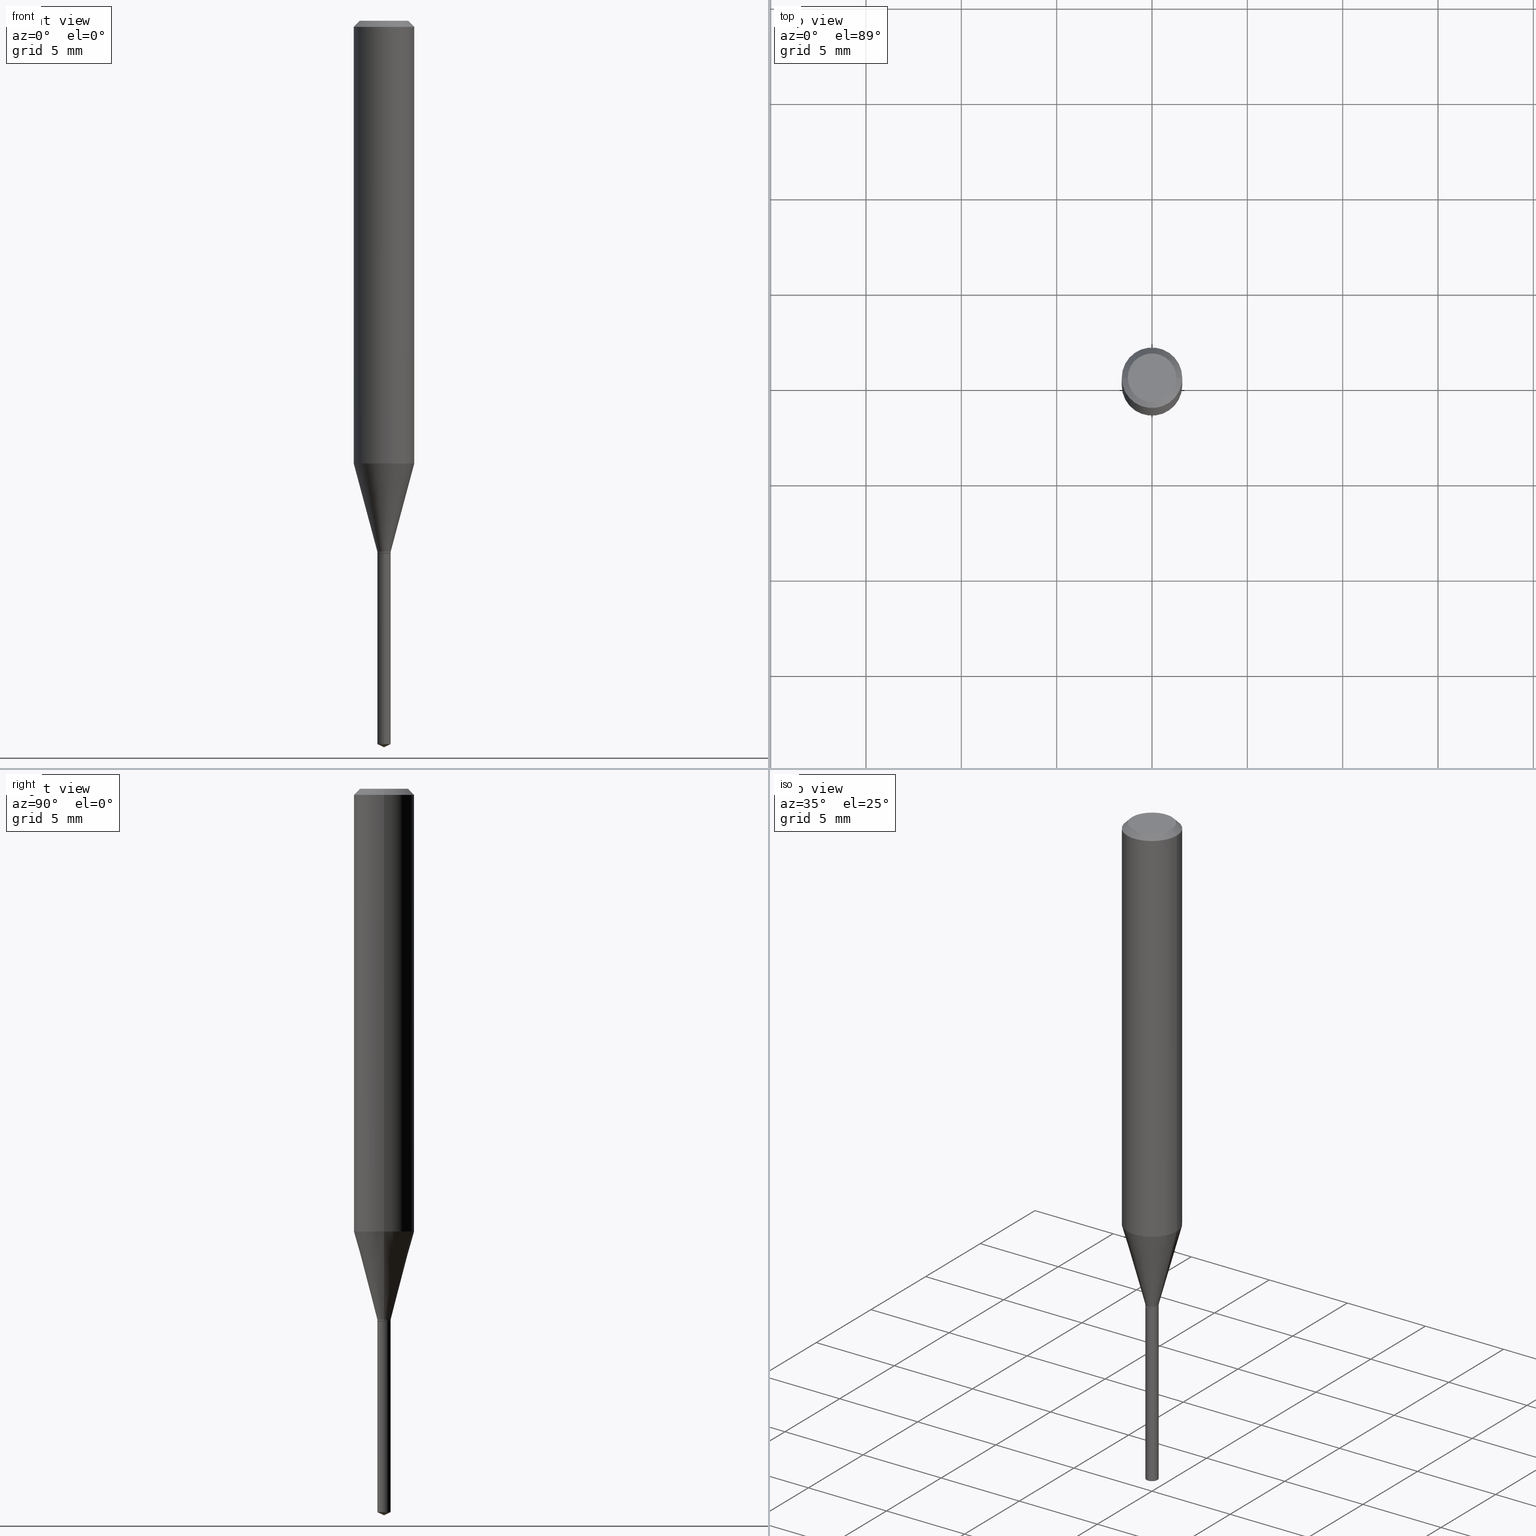
[diagram: canonical four-view strip — front | top / right | iso, engineering-drawing reading convention]
A machine part, canonical four-view strip (front | top / right | iso — engineering-drawing reading convention). The complete STEP part file that produces these views, byte-faithful:
ISO-10303-21;
HEADER;
FILE_DESCRIPTION (( 'STEP AP203' ),
    '1' );
FILE_NAME ('07291.STEP',
    '2024-04-23T20:14:42',
    ( '' ),
    ( '' ),
    'SwSTEP 2.0',
    'SolidWorks 2023',
    '' );
FILE_SCHEMA (( 'CONFIG_CONTROL_DESIGN' ));
ENDSEC;

DATA;
#1 = LINE ( 'NONE', #5, #126 ) ;
#2 = EDGE_LOOP ( 'NONE', ( #470, #480, #7, #56 ) ) ;
#3 = CYLINDRICAL_SURFACE ( 'NONE', #347, 0.01379999999999999977 ) ;
#4 = APPLICATION_PROTOCOL_DEFINITION ( 'international standard', 'config_control_design', 1994, #412 ) ;
#5 = CARTESIAN_POINT ( 'NONE',  ( -0.01379999999999999977, 9.805489753489382399E-17, -6.788130424551770621E-31 ) ) ;
#6 = DIRECTION ( 'NONE',  ( -2.445468806185136597E-29, 3.491481338843145583E-15, 1.000000000000000000 ) ) ;
#7 = ORIENTED_EDGE ( 'NONE', *, *, #40, .F. ) ;
#8 = LINE ( 'NONE', #388, #26 ) ;
#9 = LOCAL_TIME ( 16, 14, 42.00000000000000000, #475 ) ;
#10 = AXIS2_PLACEMENT_3D ( 'NONE', #211, #186, #432 ) ;
#11 = APPROVAL_DATE_TIME ( #324, #396 ) ;
#12 = CONICAL_SURFACE ( 'NONE', #213, 0.01379999999999999977, 0.2617993877991499074 ) ;
#13 = CC_DESIGN_SECURITY_CLASSIFICATION ( #390, ( #374 ) ) ;
#14 = ORIENTED_EDGE ( 'NONE', *, *, #344, .T. ) ;
#15 = CARTESIAN_POINT ( 'NONE',  ( 2.690015686803650369E-29, -3.840629472727460101E-15, -1.100000000000000089 ) ) ;
#16 = DIRECTION ( 'NONE',  ( -2.445399690415121530E-29, 3.491580316559632610E-15, 1.000000000000000000 ) ) ;
#17 = VECTOR ( 'NONE', #166, 39.37007874015748143 ) ;
#18 = CC_DESIGN_APPROVAL ( #396, ( #374 ) ) ;
#19 = CARTESIAN_POINT ( 'NONE',  ( 1.946643104841063088E-47, -2.779290439833033990E-33, -7.960204194457798443E-19 ) ) ;
#20 = PERSON_AND_ORGANIZATION ( #250, #51 ) ;
#21 = CARTESIAN_POINT ( 'NONE',  ( 0.06250000000000000000, -4.724246415962602840E-16, -0.01250000000000008223 ) ) ;
#22 = ORIENTED_EDGE ( 'NONE', *, *, #365, .F. ) ;
#23 = DIRECTION ( 'NONE',  ( -2.445468806185136597E-29, 3.491481338843145583E-15, 1.000000000000000000 ) ) ;
#24 = ADVANCED_FACE ( 'NONE', ( #104 ), #227, .T. ) ;
#25 = ORIENTED_EDGE ( 'NONE', *, *, #279, .T. ) ;
#26 = VECTOR ( 'NONE', #474, 39.37007874015748854 ) ;
#27 = LINE ( 'NONE', #185, #263 ) ;
#28 = CONICAL_SURFACE ( 'NONE', #484, 84.42940631927420725, 1.134464013796315340 ) ;
#29 = DIRECTION ( 'NONE',  ( 1.000000000000000000, -6.982962677686266711E-15, 0.000000000000000000 ) ) ;
#30 = VERTEX_POINT ( 'NONE', #400 ) ;
#31 = VERTEX_POINT ( 'NONE', #334 ) ;
#32 = DIRECTION ( 'NONE',  ( 0.2588190451025211836, 1.565188264969622559E-15, 0.9659258262890679791 ) ) ;
#33 = EDGE_CURVE ( 'NONE', #323, #309, #264, .T. ) ;
#34 = EDGE_LOOP ( 'NONE', ( #158, #25, #98, #189 ) ) ;
#35 = CIRCLE ( 'NONE', #430, 0.06250000000000000000 ) ;
#36 = CARTESIAN_POINT ( 'NONE',  ( -0.06250000000000005551, 4.440892098500630106E-16, -3.074334431409318916E-30 ) ) ;
#37 = ORIENTED_EDGE ( 'NONE', *, *, #33, .F. ) ;
#38 = DIRECTION ( 'NONE',  ( -2.445468806185136597E-29, 3.491481338843145583E-15, 1.000000000000000000 ) ) ;
#39 = DIRECTION ( 'NONE',  ( 1.000000000000000000, -6.982962677686269866E-15, 0.000000000000000000 ) ) ;
#40 = EDGE_CURVE ( 'NONE', #487, #221, #107, .T. ) ;
#41 = DIRECTION ( 'NONE',  ( -2.438088387897960049E-29, 3.491481338843145188E-15, 1.000000000000000000 ) ) ;
#42 = ORIENTED_EDGE ( 'NONE', *, *, #485, .T. ) ;
#43 = DIRECTION ( 'NONE',  ( -2.445468806185136877E-29, 3.491481338843145188E-15, 1.000000000000000000 ) ) ;
#44 = AXIS2_PLACEMENT_3D ( 'NONE', #232, #192, #269 ) ;
#45 = FACE_OUTER_BOUND ( 'NONE', #63, .T. ) ;
#46 = PRODUCT_DEFINITION ( 'UNKNOWN', '', #374, #318 ) ;
#47 = ORIENTED_EDGE ( 'NONE', *, *, #33, .T. ) ;
#48 = VECTOR ( 'NONE', #483, 39.37007874015748143 ) ;
#49 = CALENDAR_DATE ( 2024, 23, 4 ) ;
#50 = CIRCLE ( 'NONE', #190, 0.01379999999999999977 ) ;
#51 = ORGANIZATION ( 'UNSPECIFIED', 'UNSPECIFIED', '' ) ;
#52 = EDGE_LOOP ( 'NONE', ( #119, #144 ) ) ;
#53 = DIRECTION ( 'NONE',  ( 1.000000000000000000, -6.982962677686269866E-15, 0.000000000000000000 ) ) ;
#54 = PERSON_AND_ORGANIZATION ( #250, #51 ) ;
#55 = ORIENTED_EDGE ( 'NONE', *, *, #75, .T. ) ;
#56 = ORIENTED_EDGE ( 'NONE', *, *, #219, .F. ) ;
#57 = VERTEX_POINT ( 'NONE', #175 ) ;
#58 = EDGE_CURVE ( 'NONE', #387, #149, #401, .T. ) ;
#59 = CYLINDRICAL_SURFACE ( 'NONE', #88, 0.01379999999999999977 ) ;
#60 = VERTEX_POINT ( 'NONE', #359 ) ;
#61 = DIRECTION ( 'NONE',  ( -0.7071067811865453523, 2.468850131082234184E-15, -0.7071067811865496822 ) ) ;
#62 = ADVANCED_FACE ( 'NONE', ( #398 ), #12, .T. ) ;
#63 = EDGE_LOOP ( 'NONE', ( #392, #42, #258, #335 ) ) ;
#64 = DIRECTION ( 'NONE',  ( -2.445468806185136597E-29, 3.491481338843145583E-15, 1.000000000000000000 ) ) ;
#65 = ORIENTED_EDGE ( 'NONE', *, *, #233, .T. ) ;
#66 = FACE_OUTER_BOUND ( 'NONE', #150, .T. ) ;
#67 = AXIS2_PLACEMENT_3D ( 'NONE', #260, #406, #29 ) ;
#68 = ORIENTED_EDGE ( 'NONE', *, *, #444, .T. ) ;
#69 = DIRECTION ( 'NONE',  ( 1.000000000000000000, -6.982962677686265922E-15, 4.875957971899673662E-29 ) ) ;
#70 = ORIENTED_EDGE ( 'NONE', *, *, #75, .F. ) ;
#71 = DIRECTION ( 'NONE',  ( 1.000000000000000000, 0.000000000000000000, 0.000000000000000000 ) ) ;
#72 = AXIS2_PLACEMENT_3D ( 'NONE', #248, #16, #261 ) ;
#73 =( GEOMETRIC_REPRESENTATION_CONTEXT ( 3 ) GLOBAL_UNCERTAINTY_ASSIGNED_CONTEXT ( ( #411 ) ) GLOBAL_UNIT_ASSIGNED_CONTEXT ( ( #230, #151, #268 ) ) REPRESENTATION_CONTEXT ( 'NONE', 'WORKASPACE' ) );
#74 = LINE ( 'NONE', #424, #118 ) ;
#75 = EDGE_CURVE ( 'NONE', #476, #116, #234, .T. ) ;
#76 = DIRECTION ( 'NONE',  ( 1.000000000000000000, -6.982962677686265922E-15, 0.000000000000000000 ) ) ;
#77 = ORIENTED_EDGE ( 'NONE', *, *, #122, .F. ) ;
#78 = PRODUCT ( '07291', '07291', '', ( #462 ) ) ;
#79 = DIRECTION ( 'NONE',  ( -2.445468806185136877E-29, 3.491481338843145188E-15, 1.000000000000000000 ) ) ;
#80 = CARTESIAN_POINT ( 'NONE',  ( 3.056836007731440977E-31, -4.364351673553961068E-17, -0.01250000000000008223 ) ) ;
#81 = AXIS2_PLACEMENT_3D ( 'NONE', #435, #170, #95 ) ;
#82 = ORIENTED_EDGE ( 'NONE', *, *, #122, .T. ) ;
#83 = ADVANCED_FACE ( 'NONE', ( #467 ), #155, .T. ) ;
#84 = CARTESIAN_POINT ( 'NONE',  ( 0.01379999999999999977, -9.636488495207048524E-17, 6.729123950598392144E-31 ) ) ;
#85 = CARTESIAN_POINT ( 'NONE',  ( 9.805489753492071922E-17, 0.01379999999999615909, -1.100000000000000089 ) ) ;
#86 = DIRECTION ( 'NONE',  ( -2.445399690415121530E-29, 3.491580316559632610E-15, 1.000000000000000000 ) ) ;
#87 = ADVANCED_FACE ( 'NONE', ( #195 ), #376, .T. ) ;
#88 = AXIS2_PLACEMENT_3D ( 'NONE', #204, #358, #212 ) ;
#89 = ORIENTED_EDGE ( 'NONE', *, *, #327, .F. ) ;
#90 = CARTESIAN_POINT ( 'NONE',  ( 0.06250000000000005551, -4.364351673553921131E-16, 3.047610484872463023E-30 ) ) ;
#91 = DIRECTION ( 'NONE',  ( 1.000000000000000000, -6.982962677686265922E-15, 4.875957971899673662E-29 ) ) ;
#92 = FACE_OUTER_BOUND ( 'NONE', #196, .T. ) ;
#93 = ORIENTED_EDGE ( 'NONE', *, *, #249, .T. ) ;
#94 = ORIENTED_EDGE ( 'NONE', *, *, #123, .F. ) ;
#95 = DIRECTION ( 'NONE',  ( 1.000000000000000000, -6.982962677686269866E-15, 0.000000000000000000 ) ) ;
#96 = DATE_AND_TIME ( #436, #161 ) ;
#97 = AXIS2_PLACEMENT_3D ( 'NONE', #326, #38, #310 ) ;
#98 = ORIENTED_EDGE ( 'NONE', *, *, #444, .F. ) ;
#99 = FACE_OUTER_BOUND ( 'NONE', #422, .T. ) ;
#100 = DIRECTION ( 'NONE',  ( -2.445399690415121530E-29, 3.491580316559632610E-15, 1.000000000000000000 ) ) ;
#101 = CARTESIAN_POINT ( 'NONE',  ( -9.260740279983036507E-28, 1.322265303911854087E-13, 37.87007874015748143 ) ) ;
#102 = CIRCLE ( 'NONE', #450, 0.01379999999999999977 ) ;
#103 = DIRECTION ( 'NONE',  ( 1.000000000000000000, -6.982962677686264344E-15, 0.000000000000000000 ) ) ;
#104 = FACE_OUTER_BOUND ( 'NONE', #142, .T. ) ;
#105 = EDGE_LOOP ( 'NONE', ( #55, #128, #22, #256 ) ) ;
#106 = CARTESIAN_POINT ( 'NONE',  ( 2.690015686803650369E-29, -3.840629472727460101E-15, -1.100000000000000089 ) ) ;
#107 = CIRCLE ( 'NONE', #72, 0.01379999999999999977 ) ;
#108 = PERSON_AND_ORGANIZATION_ROLE ( 'design_owner' ) ;
#109 = AXIS2_PLACEMENT_3D ( 'NONE', #267, #159, #311 ) ;
#110 = ADVANCED_FACE ( 'NONE', ( #153 ), #228, .T. ) ;
#111 = LOCAL_TIME ( 16, 14, 42.00000000000000000, #272 ) ;
#112 = CARTESIAN_POINT ( 'NONE',  ( -9.636488495204356536E-17, -0.01380000000000384218, -1.100000000000000089 ) ) ;
#113 = CARTESIAN_POINT ( 'NONE',  ( 3.056836007731440977E-31, -4.364351673553961068E-17, -0.01250000000000008223 ) ) ;
#114 = ORIENTED_EDGE ( 'NONE', *, *, #327, .T. ) ;
#115 = CARTESIAN_POINT ( 'NONE',  ( 0.000000000000000000, 0.000000000000000000, 0.000000000000000000 ) ) ;
#116 = VERTEX_POINT ( 'NONE', #341 ) ;
#117 = DIRECTION ( 'NONE',  ( 1.000000000000000000, -6.982962677686267499E-15, 4.876176775795936353E-29 ) ) ;
#118 = VECTOR ( 'NONE', #307, 39.37007874015748854 ) ;
#119 = ORIENTED_EDGE ( 'NONE', *, *, #40, .T. ) ;
#120 = FACE_OUTER_BOUND ( 'NONE', #225, .T. ) ;
#121 = APPROVAL_DATE_TIME ( #280, #274 ) ;
#122 = EDGE_CURVE ( 'NONE', #31, #60, #35, .T. ) ;
#123 = EDGE_CURVE ( 'NONE', #387, #60, #156, .T. ) ;
#124 = LINE ( 'NONE', #85, #408 ) ;
#125 = APPROVAL_ROLE ( '' ) ;
#126 = VECTOR ( 'NONE', #157, 39.37007874015748143 ) ;
#127 = CC_DESIGN_PERSON_AND_ORGANIZATION_ASSIGNMENT ( #134, #130, ( #390 ) ) ;
#128 = ORIENTED_EDGE ( 'NONE', *, *, #177, .T. ) ;
#129 = DIRECTION ( 'NONE',  ( -6.982962677686265922E-15, -1.000000000000000000, 0.000000000000000000 ) ) ;
#130 = PERSON_AND_ORGANIZATION_ROLE ( 'classification_officer' ) ;
#131 = PERSON_AND_ORGANIZATION ( #250, #51 ) ;
#132 = CARTESIAN_POINT ( 'NONE',  ( 2.679989264698291414E-29, -3.826314399238203772E-15, -1.095900000000000096 ) ) ;
#133 = DIRECTION ( 'NONE',  ( 2.438088387897960049E-29, -3.491481338843145188E-15, -1.000000000000000000 ) ) ;
#134 = PERSON_AND_ORGANIZATION ( #250, #51 ) ;
#135 = CC_DESIGN_PERSON_AND_ORGANIZATION_ASSIGNMENT ( #302, #108, ( #78 ) ) ;
#136 = CIRCLE ( 'NONE', #482, 0.01330000000000000279 ) ;
#137 = VECTOR ( 'NONE', #43, 39.37007874015748143 ) ;
#138 = DIRECTION ( 'NONE',  ( -2.445399690415121530E-29, 3.491580316559632610E-15, 1.000000000000000000 ) ) ;
#139 = EDGE_CURVE ( 'NONE', #476, #57, #273, .T. ) ;
#140 = VERTEX_POINT ( 'NONE', #490 ) ;
#141 = CARTESIAN_POINT ( 'NONE',  ( 2.235523171030814691E-29, -3.191734613201455764E-15, -0.9141491256713957236 ) ) ;
#142 = EDGE_LOOP ( 'NONE', ( #420, #93, #417 ) ) ;
#143 = DIRECTION ( 'NONE',  ( 6.982962677686265922E-15, 1.000000000000000000, -3.491580316559632610E-15 ) ) ;
#144 = ORIENTED_EDGE ( 'NONE', *, *, #242, .T. ) ;
#145 = EDGE_CURVE ( 'NONE', #251, #30, #102, .T. ) ;
#146 = VECTOR ( 'NONE', #418, 39.37007874015748143 ) ;
#147 = ORIENTED_EDGE ( 'NONE', *, *, #207, .F. ) ;
#148 = CARTESIAN_POINT ( 'NONE',  ( 3.893286209682126177E-47, -5.558580879666067980E-33, -1.592040838891559689E-18 ) ) ;
#149 = VERTEX_POINT ( 'NONE', #346 ) ;
#150 = EDGE_LOOP ( 'NONE', ( #373, #300, #147, #187 ) ) ;
#151 =( NAMED_UNIT ( * ) PLANE_ANGLE_UNIT ( ) SI_UNIT ( $, .RADIAN. ) );
#152 = FACE_OUTER_BOUND ( 'NONE', #306, .T. ) ;
#153 = FACE_OUTER_BOUND ( 'NONE', #371, .T. ) ;
#154 = ORIENTED_EDGE ( 'NONE', *, *, #428, .F. ) ;
#155 = CONICAL_SURFACE ( 'NONE', #44, 0.01330000000000000279, 0.7853981633974098653 ) ;
#156 = LINE ( 'NONE', #36, #137 ) ;
#157 = DIRECTION ( 'NONE',  ( -2.445468806185136877E-29, 3.491481338843145188E-15, 1.000000000000000000 ) ) ;
#158 = ORIENTED_EDGE ( 'NONE', *, *, #207, .T. ) ;
#159 = DIRECTION ( 'NONE',  ( 2.445468806185136597E-29, -3.491481338843145583E-15, -1.000000000000000000 ) ) ;
#160 = PRODUCT_RELATED_PRODUCT_CATEGORY ( 'detail', '', ( #78 ) ) ;
#161 = LOCAL_TIME ( 16, 14, 42.00000000000000000, #287 ) ;
#162 = LINE ( 'NONE', #356, #17 ) ;
#163 = AXIS2_PLACEMENT_3D ( 'NONE', #80, #421, #301 ) ;
#164 = CONICAL_SURFACE ( 'NONE', #214, 0.01330000000000000279, 0.7853981633974098653 ) ;
#165 = DATE_AND_TIME ( #49, #353 ) ;
#166 = DIRECTION ( 'NONE',  ( -6.328713451373372534E-15, -0.9063077870366488265, 0.4226182617407016062 ) ) ;
#167 = ADVANCED_FACE ( 'NONE', ( #152 ), #191, .F. ) ;
#168 = ORIENTED_EDGE ( 'NONE', *, *, #249, .F. ) ;
#169 = CC_DESIGN_DATE_AND_TIME_ASSIGNMENT ( #165, #176, ( #46 ) ) ;
#170 = DIRECTION ( 'NONE',  ( -2.445468806185136597E-29, 3.491481338843145583E-15, 1.000000000000000000 ) ) ;
#171 = ORIENTED_EDGE ( 'NONE', *, *, #139, .T. ) ;
#172 = DIRECTION ( 'NONE',  ( -2.445468806185136597E-29, 3.491481338843145583E-15, 1.000000000000000000 ) ) ;
#173 = CLOSED_SHELL ( 'NONE', ( #83, #87, #218, #62, #465, #181, #224, #342, #110, #239, #167, #381 ) ) ;
#174 = PERSON_AND_ORGANIZATION_ROLE ( 'creator' ) ;
#175 = CARTESIAN_POINT ( 'NONE',  ( 0.01379999999999999977, -3.935248617010108750E-15, -1.099499999999999922 ) ) ;
#176 = DATE_TIME_ROLE ( 'creation_date' ) ;
#177 = EDGE_CURVE ( 'NONE', #116, #247, #74, .T. ) ;
#178 = CARTESIAN_POINT ( 'NONE',  ( 2.690015686803650369E-29, -3.840629472727460101E-15, -1.100000000000000089 ) ) ;
#179 = CARTESIAN_POINT ( 'NONE',  ( 2.690015686803650369E-29, -3.840629472727460101E-15, -1.100000000000000089 ) ) ;
#180 = AXIS2_PLACEMENT_3D ( 'NONE', #361, #86, #321 ) ;
#181 = ADVANCED_FACE ( 'NONE', ( #461 ), #3, .T. ) ;
#182 = AXIS2_PLACEMENT_3D ( 'NONE', #402, #448, #257 ) ;
#183 = EDGE_CURVE ( 'NONE', #57, #140, #193, .T. ) ;
#184 = CARTESIAN_POINT ( 'NONE',  ( 0.01379999999999999977, -3.922679284190274713E-15, -1.095900000000000096 ) ) ;
#185 = CARTESIAN_POINT ( 'NONE',  ( -0.06250000000000000000, 3.927916506198521080E-16, -0.01250000000000008223 ) ) ;
#186 = DIRECTION ( 'NONE',  ( -2.445399690415121530E-29, 3.491580316559632610E-15, 1.000000000000000000 ) ) ;
#187 = ORIENTED_EDGE ( 'NONE', *, *, #183, .F. ) ;
#188 = DIRECTION ( 'NONE',  ( -2.445468806185136597E-29, 3.491481338843145583E-15, 1.000000000000000000 ) ) ;
#189 = ORIENTED_EDGE ( 'NONE', *, *, #362, .F. ) ;
#190 = AXIS2_PLACEMENT_3D ( 'NONE', #349, #380, #39 ) ;
#191 = PLANE ( 'NONE',  #202 ) ;
#192 = DIRECTION ( 'NONE',  ( -2.445468806185136597E-29, 3.491481338843145583E-15, 1.000000000000000000 ) ) ;
#193 = LINE ( 'NONE', #84, #440 ) ;
#194 = VECTOR ( 'NONE', #32, 39.37007874015748854 ) ;
#195 = FACE_OUTER_BOUND ( 'NONE', #454, .T. ) ;
#196 = EDGE_LOOP ( 'NONE', ( #94, #199, #114, #292 ) ) ;
#197 = CARTESIAN_POINT ( 'NONE',  ( 2.690015686803650369E-29, -3.840629472727460101E-15, -1.100000000000000089 ) ) ;
#198 = CALENDAR_DATE ( 2024, 23, 4 ) ;
#199 = ORIENTED_EDGE ( 'NONE', *, *, #58, .T. ) ;
#200 = AXIS2_PLACEMENT_3D ( 'NONE', #348, #384, #71 ) ;
#201 = DIRECTION ( 'NONE',  ( -1.000000000000000000, 6.982962677686265922E-15, -4.876176775795935793E-29 ) ) ;
#202 = AXIS2_PLACEMENT_3D ( 'NONE', #106, #41, #415 ) ;
#203 = CIRCLE ( 'NONE', #339, 0.01379999999999999977 ) ;
#204 = CARTESIAN_POINT ( 'NONE',  ( 2.690015686803650369E-29, -3.840629472727460101E-15, -1.100000000000000089 ) ) ;
#205 = ADVANCED_BREP_SHAPE_REPRESENTATION ( '07291', ( #449, #282, #200 ), #73 ) ;
#206 = COORDINATED_UNIVERSAL_TIME_OFFSET ( 5, 0, .BEHIND. ) ;
#207 = EDGE_CURVE ( 'NONE', #140, #410, #50, .T. ) ;
#208 = PERSON_AND_ORGANIZATION ( #250, #51 ) ;
#209 = PRODUCT_DEFINITION_SHAPE ( 'NONE', 'NONE',  #46 ) ;
#210 = EDGE_CURVE ( 'NONE', #247, #410, #1, .T. ) ;
#211 = CARTESIAN_POINT ( 'NONE',  ( -9.260740279983036507E-28, 1.322265303911854087E-13, 37.87007874015748143 ) ) ;
#212 = DIRECTION ( 'NONE',  ( -6.982962677686265922E-15, -1.000000000000000000, 0.000000000000000000 ) ) ;
#213 = AXIS2_PLACEMENT_3D ( 'NONE', #132, #350, #231 ) ;
#214 = AXIS2_PLACEMENT_3D ( 'NONE', #179, #445, #298 ) ;
#215 = CARTESIAN_POINT ( 'NONE',  ( -0.01379999999999999977, -3.734544168113227903E-15, -1.095900000000000096 ) ) ;
#216 = DIRECTION ( 'NONE',  ( 1.000000000000000000, -6.982962677686265922E-15, 0.000000000000000000 ) ) ;
#217 = CYLINDRICAL_SURFACE ( 'NONE', #182, 0.01379999999999999977 ) ;
#218 = ADVANCED_FACE ( 'NONE', ( #463 ), #303, .T. ) ;
#219 = EDGE_CURVE ( 'NONE', #30, #487, #236, .T. ) ;
#220 = FACE_OUTER_BOUND ( 'NONE', #52, .T. ) ;
#221 = VERTEX_POINT ( 'NONE', #386 ) ;
#222 = DIRECTION ( 'NONE',  ( 2.445399690415121250E-29, -3.491580316559632610E-15, -1.000000000000000000 ) ) ;
#223 = DIMENSIONAL_EXPONENTS ( 1.000000000000000000, 0.000000000000000000, 0.000000000000000000, 0.000000000000000000, 0.000000000000000000, 0.000000000000000000, 0.000000000000000000 ) ;
#224 = ADVANCED_FACE ( 'NONE', ( #45 ), #391, .T. ) ;
#225 = EDGE_LOOP ( 'NONE', ( #294, #237, #425, #308 ) ) ;
#226 = CIRCLE ( 'NONE', #97, 0.01379999999999999977 ) ;
#227 = CONICAL_SURFACE ( 'NONE', #10, 84.42940631927420725, 1.134464013796315340 ) ;
#228 = CONICAL_SURFACE ( 'NONE', #109, 0.06250000000000000000, 0.7853981633974452814 ) ;
#229 = CARTESIAN_POINT ( 'NONE',  ( 0.000000000000000000, 0.000000000000000000, 0.000000000000000000 ) ) ;
#230 =( CONVERSION_BASED_UNIT ( 'INCH', #489 ) LENGTH_UNIT ( ) NAMED_UNIT ( #223 ) );
#231 = DIRECTION ( 'NONE',  ( 1.000000000000000000, -6.982962677686269866E-15, 0.000000000000000000 ) ) ;
#232 = CARTESIAN_POINT ( 'NONE',  ( 2.690015686803650369E-29, -3.840629472727460101E-15, -1.100000000000000089 ) ) ;
#233 = EDGE_CURVE ( 'NONE', #247, #57, #477, .T. ) ;
#234 = CIRCLE ( 'NONE', #354, 0.01330000000000000279 ) ;
#235 = AXIS2_PLACEMENT_3D ( 'NONE', #15, #319, #129 ) ;
#236 = LINE ( 'NONE', #112, #146 ) ;
#237 = ORIENTED_EDGE ( 'NONE', *, *, #145, .T. ) ;
#238 = APPLICATION_PROTOCOL_DEFINITION ( 'international standard', 'config_control_design', 1994, #457 ) ;
#239 = ADVANCED_FACE ( 'NONE', ( #426 ), #351, .F. ) ;
#240 = CARTESIAN_POINT ( 'NONE',  ( 3.652439304249811450E-29, -5.214793120509997697E-15, -1.493564954317461169 ) ) ;
#241 = VERTEX_POINT ( 'NONE', #389 ) ;
#242 = EDGE_CURVE ( 'NONE', #221, #487, #468, .T. ) ;
#243 = SHAPE_DEFINITION_REPRESENTATION ( #209, #205 ) ;
#244 = ORIENTED_EDGE ( 'NONE', *, *, #364, .T. ) ;
#245 = LINE ( 'NONE', #478, #460 ) ;
#246 = APPROVAL_DATE_TIME ( #429, #366 ) ;
#247 = VERTEX_POINT ( 'NONE', #473 ) ;
#248 = CARTESIAN_POINT ( 'NONE',  ( 2.690015686803650369E-29, -3.840629472727460101E-15, -1.100000000000000089 ) ) ;
#249 = EDGE_CURVE ( 'NONE', #241, #251, #245, .T. ) ;
#250 = PERSON ( 'UNSPECIFIED', 'UNSPECIFIED', 'UNSPECIFIED', ('UNSPECIFIED'), ('UNSPECIFIED'), ('UNSPECIFIED') ) ;
#251 = VERTEX_POINT ( 'NONE', #286 ) ;
#252 = CLOSED_SHELL ( 'NONE', ( #254, #24, #464, #297, #471 ) ) ;
#253 = COORDINATED_UNIVERSAL_TIME_OFFSET ( 5, 0, .BEHIND. ) ;
#254 = ADVANCED_FACE ( 'NONE', ( #394 ), #59, .T. ) ;
#255 = CC_DESIGN_PERSON_AND_ORGANIZATION_ASSIGNMENT ( #20, #479, ( #46 ) ) ;
#256 = ORIENTED_EDGE ( 'NONE', *, *, #139, .F. ) ;
#257 = DIRECTION ( 'NONE',  ( 1.000000000000000000, -6.982962677686267499E-15, 4.876176775795936353E-29 ) ) ;
#258 = ORIENTED_EDGE ( 'NONE', *, *, #362, .T. ) ;
#259 = CIRCLE ( 'NONE', #360, 0.04999999999999999584 ) ;
#260 = CARTESIAN_POINT ( 'NONE',  ( 3.056836007731440977E-31, -4.364351673553961068E-17, -0.01250000000000008223 ) ) ;
#261 = DIRECTION ( 'NONE',  ( -6.982962677686265922E-15, -1.000000000000000000, 0.000000000000000000 ) ) ;
#262 = CARTESIAN_POINT ( 'NONE',  ( 0.01330000000000000279, -3.933502876340687247E-15, -1.100000000000000089 ) ) ;
#263 = VECTOR ( 'NONE', #61, 39.37007874015748143 ) ;
#264 = CIRCLE ( 'NONE', #330, 0.04999999999999999584 ) ;
#265 = AXIS2_PLACEMENT_3D ( 'NONE', #19, #133, #201 ) ;
#266 = CIRCLE ( 'NONE', #355, 0.01379999999999999977 ) ;
#267 = CARTESIAN_POINT ( 'NONE',  ( 3.056836007731440977E-31, -4.364351673553961068E-17, -0.01250000000000008223 ) ) ;
#268 =( NAMED_UNIT ( * ) SI_UNIT ( $, .STERADIAN. ) SOLID_ANGLE_UNIT ( ) );
#269 = DIRECTION ( 'NONE',  ( 1.000000000000000000, -6.982962677686265922E-15, 0.000000000000000000 ) ) ;
#270 = ORIENTED_EDGE ( 'NONE', *, *, #210, .F. ) ;
#271 = DIRECTION ( 'NONE',  ( 1.000000000000000000, -6.982962677686267499E-15, 4.876176775795936353E-29 ) ) ;
#272 = COORDINATED_UNIVERSAL_TIME_OFFSET ( 5, 0, .BEHIND. ) ;
#273 = LINE ( 'NONE', #262, #416 ) ;
#274 = APPROVAL ( #472, 'UNSPECIFIED' ) ;
#275 = DIRECTION ( 'NONE',  ( 6.439704144417027987E-15, 0.9063077870366519351, 0.4226182617406953335 ) ) ;
#276 = APPROVAL_ROLE ( '' ) ;
#277 = CARTESIAN_POINT ( 'NONE',  ( -0.04999999999999999584, 3.709698922520826725E-16, -1.592040838894077649E-18 ) ) ;
#278 = AXIS2_PLACEMENT_3D ( 'NONE', #367, #488, #289 ) ;
#279 = EDGE_CURVE ( 'NONE', #410, #387, #8, .T. ) ;
#280 = DATE_AND_TIME ( #284, #377 ) ;
#281 = ORIENTED_EDGE ( 'NONE', *, *, #364, .F. ) ;
#282 = MANIFOLD_SOLID_BREP ( 'Body-Move/Copy2[2]', #173 ) ;
#283 = CARTESIAN_POINT ( 'NONE',  ( 0.04999999999999999584, -4.077247707424184212E-16, -1.592040838888913461E-18 ) ) ;
#284 = CALENDAR_DATE ( 2024, 23, 4 ) ;
#285 = CARTESIAN_POINT ( 'NONE',  ( 3.893286209682126177E-47, -5.558580879666067980E-33, -1.592040838891559689E-18 ) ) ;
#286 = CARTESIAN_POINT ( 'NONE',  ( 9.805489753493030881E-17, 0.01379999999999478345, -1.493564954317461169 ) ) ;
#287 = COORDINATED_UNIVERSAL_TIME_OFFSET ( 5, 0, .BEHIND. ) ;
#288 = APPROVAL_PERSON_ORGANIZATION ( #208, #274, #125 ) ;
#289 = DIRECTION ( 'NONE',  ( 1.000000000000000000, -6.982962677686267499E-15, 4.876176775795936353E-29 ) ) ;
#290 = EDGE_CURVE ( 'NONE', #241, #30, #162, .T. ) ;
#291 = DIRECTION ( 'NONE',  ( -6.982962677686265922E-15, -1.000000000000000000, 0.000000000000000000 ) ) ;
#292 = ORIENTED_EDGE ( 'NONE', *, *, #344, .F. ) ;
#293 = CARTESIAN_POINT ( 'NONE',  ( 3.652439304249811450E-29, -5.214793120509997697E-15, -1.493564954317461169 ) ) ;
#294 = ORIENTED_EDGE ( 'NONE', *, *, #314, .F. ) ;
#295 = DIRECTION ( 'NONE',  ( -6.982962677686266711E-15, -1.000000000000000000, 3.520397390770459392E-15 ) ) ;
#296 = DIRECTION ( 'NONE',  ( -2.445468806185136597E-29, 3.491481338843145583E-15, 1.000000000000000000 ) ) ;
#297 = ADVANCED_FACE ( 'NONE', ( #120 ), #315, .T. ) ;
#298 = DIRECTION ( 'NONE',  ( 1.000000000000000000, -6.982962677686265922E-15, 0.000000000000000000 ) ) ;
#299 = ORIENTED_EDGE ( 'NONE', *, *, #183, .T. ) ;
#300 = ORIENTED_EDGE ( 'NONE', *, *, #210, .T. ) ;
#301 = DIRECTION ( 'NONE',  ( -1.000000000000000000, 6.982962677686266711E-15, 0.000000000000000000 ) ) ;
#302 = PERSON_AND_ORGANIZATION ( #250, #51 ) ;
#303 = CYLINDRICAL_SURFACE ( 'NONE', #304, 0.06250000000000005551 ) ;
#304 = AXIS2_PLACEMENT_3D ( 'NONE', #115, #459, #271 ) ;
#305 = CC_DESIGN_APPROVAL ( #366, ( #46 ) ) ;
#306 = EDGE_LOOP ( 'NONE', ( #70, #455 ) ) ;
#307 = DIRECTION ( 'NONE',  ( -0.7071067811865202613, 7.493145998870254764E-15, 0.7071067811865746622 ) ) ;
#308 = ORIENTED_EDGE ( 'NONE', *, *, #242, .F. ) ;
#309 = VERTEX_POINT ( 'NONE', #283 ) ;
#310 = DIRECTION ( 'NONE',  ( 1.000000000000000000, -6.982962677686269866E-15, 0.000000000000000000 ) ) ;
#311 = DIRECTION ( 'NONE',  ( -1.000000000000000000, 6.982962677686266711E-15, 0.000000000000000000 ) ) ;
#312 = ORIENTED_EDGE ( 'NONE', *, *, #145, .F. ) ;
#313 = DIRECTION ( 'NONE',  ( 1.000000000000000000, -6.982962677686266711E-15, 0.000000000000000000 ) ) ;
#314 = EDGE_CURVE ( 'NONE', #251, #221, #124, .T. ) ;
#315 = CYLINDRICAL_SURFACE ( 'NONE', #235, 0.01379999999999999977 ) ;
#316 = SECURITY_CLASSIFICATION_LEVEL ( 'unclassified' ) ;
#317 = DIRECTION ( 'NONE',  ( -2.445399690415121810E-29, 3.491580316559632610E-15, 1.000000000000000000 ) ) ;
#318 = DESIGN_CONTEXT ( 'detailed design', #457, 'design' ) ;
#319 = DIRECTION ( 'NONE',  ( -2.445399690415121530E-29, 3.491580316559632610E-15, 1.000000000000000000 ) ) ;
#320 = ORIENTED_EDGE ( 'NONE', *, *, #378, .T. ) ;
#321 = DIRECTION ( 'NONE',  ( -6.982962677686265922E-15, -1.000000000000000000, 0.000000000000000000 ) ) ;
#322 = CIRCLE ( 'NONE', #67, 0.06250000000000000000 ) ;
#323 = VERTEX_POINT ( 'NONE', #277 ) ;
#324 = DATE_AND_TIME ( #198, #9 ) ;
#325 = ORIENTED_EDGE ( 'NONE', *, *, #485, .F. ) ;
#326 = CARTESIAN_POINT ( 'NONE',  ( 2.679989264698291414E-29, -3.826314399238203772E-15, -1.095900000000000096 ) ) ;
#327 = EDGE_CURVE ( 'NONE', #149, #31, #431, .T. ) ;
#328 = CIRCLE ( 'NONE', #438, 0.06250000000000012490 ) ;
#329 = CARTESIAN_POINT ( 'NONE',  ( 2.688792952400557567E-29, -3.838883732058038598E-15, -1.099499999999999922 ) ) ;
#330 = AXIS2_PLACEMENT_3D ( 'NONE', #285, #296, #91 ) ;
#331 = AXIS2_PLACEMENT_3D ( 'NONE', #427, #172, #53 ) ;
#332 = APPROVAL_PERSON_ORGANIZATION ( #131, #366, #276 ) ;
#333 = CARTESIAN_POINT ( 'NONE',  ( -0.06250000000000012490, -2.747645403351391964E-15, -0.9141491256713957236 ) ) ;
#334 = CARTESIAN_POINT ( 'NONE',  ( 0.06250000000000000000, -4.800786840909312308E-16, -0.01250000000000008223 ) ) ;
#335 = ORIENTED_EDGE ( 'NONE', *, *, #58, .F. ) ;
#336 = DIRECTION ( 'NONE',  ( 1.000000000000000000, -6.982962677686264344E-15, 0.000000000000000000 ) ) ;
#337 = ORIENTED_EDGE ( 'NONE', *, *, #428, .T. ) ;
#338 = AXIS2_PLACEMENT_3D ( 'NONE', #413, #451, #103 ) ;
#339 = AXIS2_PLACEMENT_3D ( 'NONE', #293, #138, #291 ) ;
#340 = CC_DESIGN_DATE_AND_TIME_ASSIGNMENT ( #96, #352, ( #390 ) ) ;
#341 = CARTESIAN_POINT ( 'NONE',  ( -0.01330000000000000279, -3.743478061697255728E-15, -1.100000000000000089 ) ) ;
#342 = ADVANCED_FACE ( 'NONE', ( #92 ), #399, .T. ) ;
#343 = DIRECTION ( 'NONE',  ( -2.445468806185136597E-29, 3.491481338843145583E-15, 1.000000000000000000 ) ) ;
#344 = EDGE_CURVE ( 'NONE', #60, #31, #322, .T. ) ;
#345 =( LENGTH_UNIT ( ) NAMED_UNIT ( * ) SI_UNIT ( $, .METRE. ) );
#346 = CARTESIAN_POINT ( 'NONE',  ( 0.06250000000000012490, -3.628169780556848222E-15, -0.9141491256713957236 ) ) ;
#347 = AXIS2_PLACEMENT_3D ( 'NONE', #229, #419, #117 ) ;
#348 = CARTESIAN_POINT ( 'NONE',  ( 0.000000000000000000, 0.000000000000000000, 0.000000000000000000 ) ) ;
#349 = CARTESIAN_POINT ( 'NONE',  ( 2.679989264698291414E-29, -3.826314399238203772E-15, -1.095900000000000096 ) ) ;
#350 = DIRECTION ( 'NONE',  ( -2.445468806185136597E-29, 3.491481338843145583E-15, 1.000000000000000000 ) ) ;
#351 = PLANE ( 'NONE',  #265 ) ;
#352 = DATE_TIME_ROLE ( 'classification_date' ) ;
#353 = LOCAL_TIME ( 16, 14, 42.00000000000000000, #253 ) ;
#354 = AXIS2_PLACEMENT_3D ( 'NONE', #197, #6, #76 ) ;
#355 = AXIS2_PLACEMENT_3D ( 'NONE', #329, #23, #407 ) ;
#356 = CARTESIAN_POINT ( 'NONE',  ( 3.668099535622682155E-29, -5.237370474839448718E-15, -1.500000000000000222 ) ) ;
#357 = PERSON_AND_ORGANIZATION ( #250, #51 ) ;
#358 = DIRECTION ( 'NONE',  ( -2.445399690415121530E-29, 3.491580316559632610E-15, 1.000000000000000000 ) ) ;
#359 = CARTESIAN_POINT ( 'NONE',  ( -0.06250000000000000000, -1.173599855118433863E-15, -0.01250000000000008223 ) ) ;
#360 = AXIS2_PLACEMENT_3D ( 'NONE', #148, #188, #69 ) ;
#361 = CARTESIAN_POINT ( 'NONE',  ( 2.690015686803650369E-29, -3.840629472727460101E-15, -1.100000000000000089 ) ) ;
#362 = EDGE_CURVE ( 'NONE', #140, #149, #442, .T. ) ;
#363 = CALENDAR_DATE ( 2024, 23, 4 ) ;
#364 = EDGE_CURVE ( 'NONE', #309, #323, #259, .T. ) ;
#365 = EDGE_CURVE ( 'NONE', #57, #247, #266, .T. ) ;
#366 = APPROVAL ( #452, 'UNSPECIFIED' ) ;
#367 = CARTESIAN_POINT ( 'NONE',  ( 0.000000000000000000, 0.000000000000000000, 0.000000000000000000 ) ) ;
#368 = VECTOR ( 'NONE', #433, 39.37007874015748143 ) ;
#369 = PLANE ( 'NONE',  #414 ) ;
#370 = ORIENTED_EDGE ( 'NONE', *, *, #290, .T. ) ;
#371 = EDGE_LOOP ( 'NONE', ( #423, #37, #337, #14 ) ) ;
#372 = CARTESIAN_POINT ( 'NONE',  ( 0.01330000000000000279, -3.933502876340687247E-15, -1.100000000000000089 ) ) ;
#373 = ORIENTED_EDGE ( 'NONE', *, *, #365, .T. ) ;
#374 = PRODUCT_DEFINITION_FORMATION_WITH_SPECIFIED_SOURCE ( 'ANY', '', #78, .NOT_KNOWN. ) ;
#375 = EDGE_LOOP ( 'NONE', ( #68, #379, #77, #89 ) ) ;
#376 = CONICAL_SURFACE ( 'NONE', #163, 0.06250000000000000000, 0.7853981633974452814 ) ;
#377 = LOCAL_TIME ( 16, 14, 42.00000000000000000, #206 ) ;
#378 = EDGE_CURVE ( 'NONE', #309, #31, #486, .T. ) ;
#379 = ORIENTED_EDGE ( 'NONE', *, *, #123, .T. ) ;
#380 = DIRECTION ( 'NONE',  ( -2.445468806185136597E-29, 3.491481338843145583E-15, 1.000000000000000000 ) ) ;
#381 = ADVANCED_FACE ( 'NONE', ( #99 ), #164, .T. ) ;
#382 = CARTESIAN_POINT ( 'NONE',  ( -9.636488495204356536E-17, -0.01380000000000384218, -1.100000000000000089 ) ) ;
#383 = DIRECTION ( 'NONE',  ( -2.445399690415121530E-29, 3.491580316559632610E-15, 1.000000000000000000 ) ) ;
#384 = DIRECTION ( 'NONE',  ( 0.000000000000000000, 0.000000000000000000, 1.000000000000000000 ) ) ;
#385 = DIRECTION ( 'NONE',  ( 0.7071067811865202613, -2.468850131081971887E-15, 0.7071067811865746622 ) ) ;
#386 = CARTESIAN_POINT ( 'NONE',  ( 9.805489753493040742E-17, 0.01379999999999615909, -1.100000000000000089 ) ) ;
#387 = VERTEX_POINT ( 'NONE', #333 ) ;
#388 = CARTESIAN_POINT ( 'NONE',  ( -0.01379999999999999977, -3.728259501703309702E-15, -1.095900000000000096 ) ) ;
#389 = CARTESIAN_POINT ( 'NONE',  ( 3.668099535622682715E-29, -5.237370474839449507E-15, -1.500000000000000222 ) ) ;
#390 = SECURITY_CLASSIFICATION ( '', '', #316 ) ;
#391 = CONICAL_SURFACE ( 'NONE', #81, 0.01379999999999999977, 0.2617993877991499074 ) ;
#392 = ORIENTED_EDGE ( 'NONE', *, *, #279, .F. ) ;
#393 = APPROVAL_PERSON_ORGANIZATION ( #54, #396, #403 ) ;
#394 = FACE_OUTER_BOUND ( 'NONE', #2, .T. ) ;
#395 = PERSON_AND_ORGANIZATION ( #250, #51 ) ;
#396 = APPROVAL ( #397, 'UNSPECIFIED' ) ;
#397 = APPROVAL_STATUS ( 'not_yet_approved' ) ;
#398 = FACE_OUTER_BOUND ( 'NONE', #34, .T. ) ;
#399 = CYLINDRICAL_SURFACE ( 'NONE', #278, 0.06250000000000005551 ) ;
#400 = CARTESIAN_POINT ( 'NONE',  ( -9.636488495203393879E-17, -0.01380000000000521435, -1.493564954317461169 ) ) ;
#401 = CIRCLE ( 'NONE', #338, 0.06250000000000012490 ) ;
#402 = CARTESIAN_POINT ( 'NONE',  ( 0.000000000000000000, 0.000000000000000000, 0.000000000000000000 ) ) ;
#403 = APPROVAL_ROLE ( '' ) ;
#404 = CARTESIAN_POINT ( 'NONE',  ( 2.690015686803650369E-29, -3.840629472727460101E-15, -1.100000000000000089 ) ) ;
#405 = CC_DESIGN_PERSON_AND_ORGANIZATION_ASSIGNMENT ( #357, #174, ( #374 ) ) ;
#406 = DIRECTION ( 'NONE',  ( -2.445468806185136597E-29, 3.491481338843145583E-15, 1.000000000000000000 ) ) ;
#407 = DIRECTION ( 'NONE',  ( 1.000000000000000000, -6.982962677686269866E-15, 0.000000000000000000 ) ) ;
#408 = VECTOR ( 'NONE', #317, 39.37007874015748143 ) ;
#409 = ORIENTED_EDGE ( 'NONE', *, *, #437, .T. ) ;
#410 = VERTEX_POINT ( 'NONE', #215 ) ;
#411 = UNCERTAINTY_MEASURE_WITH_UNIT (LENGTH_MEASURE( 1.000000000000000082E-05 ), #230, 'distance_accuracy_value', 'NONE');
#412 = APPLICATION_CONTEXT ( 'configuration controlled 3d designs of mechanical parts and assemblies' ) ;
#413 = CARTESIAN_POINT ( 'NONE',  ( 2.235523171030814691E-29, -3.191734613201455764E-15, -0.9141491256713957236 ) ) ;
#414 = AXIS2_PLACEMENT_3D ( 'NONE', #178, #222, #143 ) ;
#415 = DIRECTION ( 'NONE',  ( 1.000000000000000000, -6.982962677686265922E-15, 4.876176775795935793E-29 ) ) ;
#416 = VECTOR ( 'NONE', #385, 39.37007874015748854 ) ;
#417 = ORIENTED_EDGE ( 'NONE', *, *, #446, .F. ) ;
#418 = DIRECTION ( 'NONE',  ( -2.445399690415121810E-29, 3.491580316559632610E-15, 1.000000000000000000 ) ) ;
#419 = DIRECTION ( 'NONE',  ( -2.445468806185136597E-29, 3.491481338843145583E-15, 1.000000000000000000 ) ) ;
#420 = ORIENTED_EDGE ( 'NONE', *, *, #290, .F. ) ;
#421 = DIRECTION ( 'NONE',  ( 2.445468806185136597E-29, -3.491481338843145583E-15, -1.000000000000000000 ) ) ;
#422 = EDGE_LOOP ( 'NONE', ( #434, #409, #171, #441 ) ) ;
#423 = ORIENTED_EDGE ( 'NONE', *, *, #378, .F. ) ;
#424 = CARTESIAN_POINT ( 'NONE',  ( -0.01330000000000000279, -3.746127288871366929E-15, -1.100000000000000089 ) ) ;
#425 = ORIENTED_EDGE ( 'NONE', *, *, #219, .T. ) ;
#426 = FACE_OUTER_BOUND ( 'NONE', #439, .T. ) ;
#427 = CARTESIAN_POINT ( 'NONE',  ( 2.688792952400557567E-29, -3.838883732058038598E-15, -1.099499999999999922 ) ) ;
#428 = EDGE_CURVE ( 'NONE', #323, #60, #27, .T. ) ;
#429 = DATE_AND_TIME ( #363, #111 ) ;
#430 = AXIS2_PLACEMENT_3D ( 'NONE', #113, #343, #313 ) ;
#431 = LINE ( 'NONE', #90, #368 ) ;
#432 = DIRECTION ( 'NONE',  ( -6.982962677686266711E-15, -1.000000000000000000, 3.520397390770459392E-15 ) ) ;
#433 = DIRECTION ( 'NONE',  ( -2.445468806185136877E-29, 3.491481338843145188E-15, 1.000000000000000000 ) ) ;
#434 = ORIENTED_EDGE ( 'NONE', *, *, #177, .F. ) ;
#435 = CARTESIAN_POINT ( 'NONE',  ( 2.679989264698291414E-29, -3.826314399238203772E-15, -1.095900000000000096 ) ) ;
#436 = CALENDAR_DATE ( 2024, 23, 4 ) ;
#437 = EDGE_CURVE ( 'NONE', #116, #476, #136, .T. ) ;
#438 = AXIS2_PLACEMENT_3D ( 'NONE', #141, #453, #336 ) ;
#439 = EDGE_LOOP ( 'NONE', ( #47, #244 ) ) ;
#440 = VECTOR ( 'NONE', #79, 39.37007874015748143 ) ;
#441 = ORIENTED_EDGE ( 'NONE', *, *, #233, .F. ) ;
#442 = LINE ( 'NONE', #184, #194 ) ;
#443 = EDGE_LOOP ( 'NONE', ( #270, #65, #299, #325 ) ) ;
#444 = EDGE_CURVE ( 'NONE', #149, #387, #328, .T. ) ;
#445 = DIRECTION ( 'NONE',  ( -2.445468806185136597E-29, 3.491481338843145583E-15, 1.000000000000000000 ) ) ;
#446 = EDGE_CURVE ( 'NONE', #30, #251, #203, .T. ) ;
#447 = FACE_OUTER_BOUND ( 'NONE', #466, .T. ) ;
#448 = DIRECTION ( 'NONE',  ( -2.445468806185136597E-29, 3.491481338843145583E-15, 1.000000000000000000 ) ) ;
#449 = MANIFOLD_SOLID_BREP ( 'Body-Move/Copy2[1]', #252 ) ;
#450 = AXIS2_PLACEMENT_3D ( 'NONE', #240, #383, #456 ) ;
#451 = DIRECTION ( 'NONE',  ( -2.445468806185136597E-29, 3.491481338843145583E-15, 1.000000000000000000 ) ) ;
#452 = APPROVAL_STATUS ( 'not_yet_approved' ) ;
#453 = DIRECTION ( 'NONE',  ( -2.445468806185136597E-29, 3.491481338843145583E-15, 1.000000000000000000 ) ) ;
#454 = EDGE_LOOP ( 'NONE', ( #281, #320, #82, #154 ) ) ;
#455 = ORIENTED_EDGE ( 'NONE', *, *, #437, .F. ) ;
#456 = DIRECTION ( 'NONE',  ( -6.982962677686265922E-15, -1.000000000000000000, 0.000000000000000000 ) ) ;
#457 = APPLICATION_CONTEXT ( 'configuration controlled 3d designs of mechanical parts and assemblies' ) ;
#458 = CC_DESIGN_PERSON_AND_ORGANIZATION_ASSIGNMENT ( #395, #481, ( #374 ) ) ;
#459 = DIRECTION ( 'NONE',  ( -2.445468806185136597E-29, 3.491481338843145583E-15, 1.000000000000000000 ) ) ;
#460 = VECTOR ( 'NONE', #275, 39.37007874015748854 ) ;
#461 = FACE_OUTER_BOUND ( 'NONE', #443, .T. ) ;
#462 = MECHANICAL_CONTEXT ( 'NONE', #412, 'mechanical' ) ;
#463 = FACE_OUTER_BOUND ( 'NONE', #375, .T. ) ;
#464 = ADVANCED_FACE ( 'NONE', ( #447 ), #28, .T. ) ;
#465 = ADVANCED_FACE ( 'NONE', ( #66 ), #217, .T. ) ;
#466 = EDGE_LOOP ( 'NONE', ( #168, #370, #312 ) ) ;
#467 = FACE_OUTER_BOUND ( 'NONE', #105, .T. ) ;
#468 = CIRCLE ( 'NONE', #180, 0.01379999999999999977 ) ;
#469 = CC_DESIGN_APPROVAL ( #274, ( #390 ) ) ;
#470 = ORIENTED_EDGE ( 'NONE', *, *, #446, .T. ) ;
#471 = ADVANCED_FACE ( 'NONE', ( #220 ), #369, .F. ) ;
#472 = APPROVAL_STATUS ( 'not_yet_approved' ) ;
#473 = CARTESIAN_POINT ( 'NONE',  ( -0.01379999999999999977, -3.734544168113227903E-15, -1.099499999999999922 ) ) ;
#474 = DIRECTION ( 'NONE',  ( -0.2588190451025211836, 5.211531920934547886E-15, 0.9659258262890679791 ) ) ;
#475 = COORDINATED_UNIVERSAL_TIME_OFFSET ( 5, 0, .BEHIND. ) ;
#476 = VERTEX_POINT ( 'NONE', #372 ) ;
#477 = CIRCLE ( 'NONE', #331, 0.01379999999999999977 ) ;
#478 = CARTESIAN_POINT ( 'NONE',  ( 3.668252923656895710E-29, -5.237152723863177100E-15, -1.500000000000000222 ) ) ;
#479 = PERSON_AND_ORGANIZATION_ROLE ( 'creator' ) ;
#480 = ORIENTED_EDGE ( 'NONE', *, *, #314, .T. ) ;
#481 = PERSON_AND_ORGANIZATION_ROLE ( 'design_supplier' ) ;
#482 = AXIS2_PLACEMENT_3D ( 'NONE', #404, #64, #216 ) ;
#483 = DIRECTION ( 'NONE',  ( 0.7071067811865453523, -7.319954787623248157E-15, -0.7071067811865496822 ) ) ;
#484 = AXIS2_PLACEMENT_3D ( 'NONE', #101, #100, #295 ) ;
#485 = EDGE_CURVE ( 'NONE', #410, #140, #226, .T. ) ;
#486 = LINE ( 'NONE', #21, #48 ) ;
#487 = VERTEX_POINT ( 'NONE', #382 ) ;
#488 = DIRECTION ( 'NONE',  ( -2.445468806185136597E-29, 3.491481338843145583E-15, 1.000000000000000000 ) ) ;
#489 = LENGTH_MEASURE_WITH_UNIT ( LENGTH_MEASURE( 0.02539999999999999897 ), #345 );
#490 = CARTESIAN_POINT ( 'NONE',  ( 0.01379999999999999977, -3.922679284190274713E-15, -1.095900000000000096 ) ) ;
ENDSEC;
END-ISO-10303-21;
